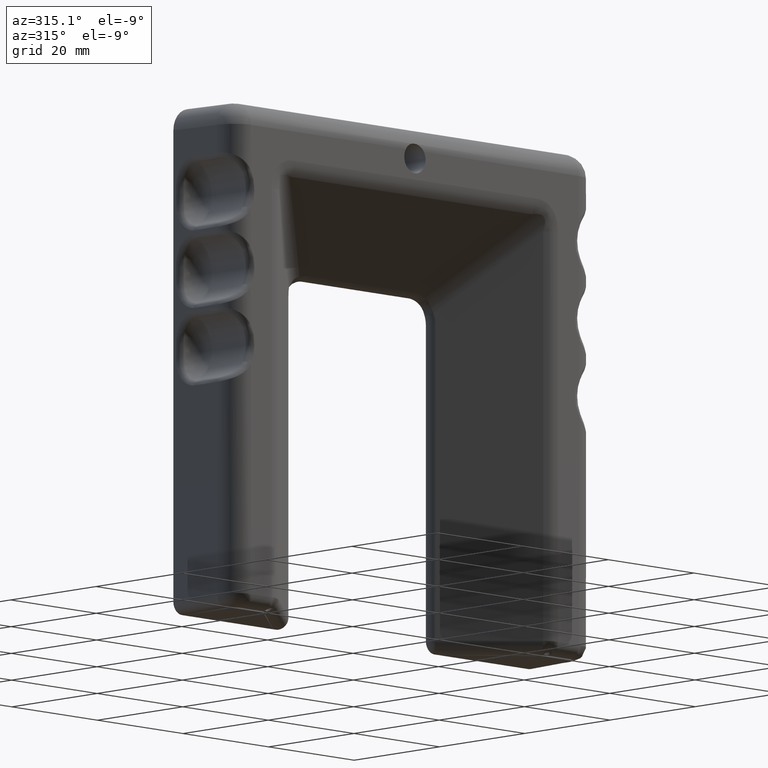
[diagram: clean part render]
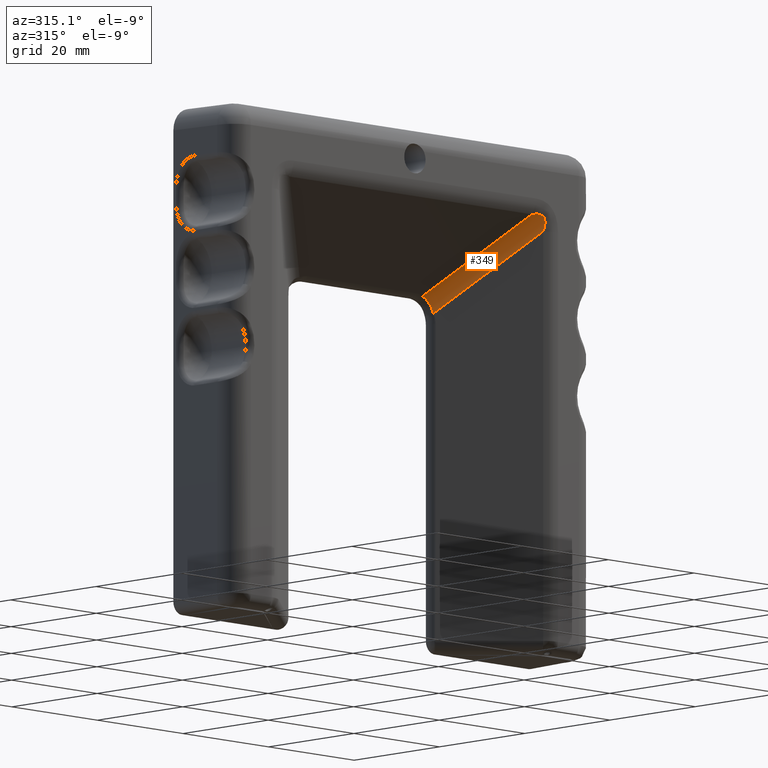
[diagram: same view with one face highlighted and labeled with its STEP entity id]
A machine part, auxiliary view. The second image highlights one B-rep face of the part: STEP entity #349.
In plain terms, the highlighted cylindrical surface (edge-blend (fillet) strip) has radius 4 mm, axis along (-0.6082, 0.5101, -0.6082).
Its self-contained STEP definition (entity closure, byte-faithful):
#349=ADVANCED_FACE('',(#1347),#1346,.F.);
#1346=CYLINDRICAL_SURFACE('',#6744,4.00000000000E+000);
#1347=FACE_OUTER_BOUND('',#6745,.T.);
#6741=CARTESIAN_POINT('',(1.42623546578E+001,-4.84389186112E+000,-2.23764534224E+000));
#6742=DIRECTION('',(-6.08193984694E-001,5.10098180711E-001,-6.08193984694E-001));
#6743=DIRECTION('',(-6.42612261976E-001,-7.66191543126E-001,4.03765547962E-015));
#6744=AXIS2_PLACEMENT_3D('',#6741,#6742,#6743);
#6745=EDGE_LOOP('',(#8347,#8348,#8349,#8350,#8351,#8352));
#8347=ORIENTED_EDGE('',*,*,#9245,.T.);
#8348=ORIENTED_EDGE('',*,*,#9080,.F.);
#8349=ORIENTED_EDGE('',*,*,#9079,.T.);
#8350=ORIENTED_EDGE('',*,*,#9246,.T.);
#8351=ORIENTED_EDGE('',*,*,#9247,.F.);
#8352=ORIENTED_EDGE('',*,*,#9248,.F.);
#9079=EDGE_CURVE('',#10341,#10334,#10342,.T.);
#9080=EDGE_CURVE('',#10341,#10307,#10348,.T.);
#9245=EDGE_CURVE('',#11446,#10307,#11447,.T.);
#9246=EDGE_CURVE('',#10334,#11453,#11454,.T.);
#9247=EDGE_CURVE('',#11460,#11453,#11461,.T.);
#9248=EDGE_CURVE('',#11446,#11460,#11467,.T.);
#10307=VERTEX_POINT('',#13576);
#10334=VERTEX_POINT('',#13593);
#10341=VERTEX_POINT('',#13598);
#10342=(BOUNDED_CURVE() B_SPLINE_CURVE(2,(#13599,#13600,#13601),.UNSPECIFIED.,.F.,.F.) B_SPLINE_CURVE_WITH_KNOTS((3,3),(0.00000000000E+000,1.00000000000E+000),.UNSPECIFIED.) CURVE() GEOMETRIC_REPRESENTATION_ITEM() RATIONAL_B_SPLINE_CURVE((1.00000000000E+000,9.72316835281E-001,1.00000000000E+000)) REPRESENTATION_ITEM('') );
#10348=(BOUNDED_CURVE() B_SPLINE_CURVE(2,(#13602,#13603,#13604),.UNSPECIFIED.,.F.,.F.) B_SPLINE_CURVE_WITH_KNOTS((3,3),(0.00000000000E+000,1.00000000000E+000),.UNSPECIFIED.) CURVE() GEOMETRIC_REPRESENTATION_ITEM() RATIONAL_B_SPLINE_CURVE((1.00000000000E+000,9.72316835281E-001,1.00000000000E+000)) REPRESENTATION_ITEM('') );
#11446=VERTEX_POINT('',#14581);
#11447=LINE('',#14582,#14583);
#11453=VERTEX_POINT('',#14585);
#11454=LINE('',#14586,#14587);
#11460=VERTEX_POINT('',#14589);
#11461=(BOUNDED_CURVE() B_SPLINE_CURVE(2,(#14590,#14591,#14592),.UNSPECIFIED.,.F.,.F.) B_SPLINE_CURVE_WITH_KNOTS((3,3),(0.00000000000E+000,1.00000000000E+000),.UNSPECIFIED.) CURVE() GEOMETRIC_REPRESENTATION_ITEM() RATIONAL_B_SPLINE_CURVE((1.00000000000E+000,9.72316835281E-001,1.00000000000E+000)) REPRESENTATION_ITEM('') );
#11467=(BOUNDED_CURVE() B_SPLINE_CURVE(2,(#14593,#14594,#14595),.UNSPECIFIED.,.F.,.F.) B_SPLINE_CURVE_WITH_KNOTS((3,3),(0.00000000000E+000,1.00000000000E+000),.UNSPECIFIED.) CURVE() GEOMETRIC_REPRESENTATION_ITEM() RATIONAL_B_SPLINE_CURVE((1.00000000000E+000,9.72316835281E-001,1.00000000000E+000)) REPRESENTATION_ITEM('') );
#13576=CARTESIAN_POINT('',(1.43515077773E+001,-1.85389927268E+000,4.21956825107E-001));
#13593=CARTESIAN_POINT('',(1.69219568252E+001,-1.85389927267E+000,-2.14849222279E+000));
#13598=CARTESIAN_POINT('',(1.60212529219E+001,-1.66856233010E+000,-4.78747078177E-001));
#13599=CARTESIAN_POINT('',(1.60212529219E+001,-1.66856233010E+000,-4.78747078177E-001));
#13600=CARTESIAN_POINT('',(1.67009781629E+001,-1.66856233010E+000,-1.15847231916E+000));
#13601=CARTESIAN_POINT('',(1.69219568252E+001,-1.85389927267E+000,-2.14849222279E+000));
#13602=CARTESIAN_POINT('',(1.60212529219E+001,-1.66856233010E+000,-4.78747078177E-001));
#13603=CARTESIAN_POINT('',(1.53415276809E+001,-1.66856233010E+000,2.00978162809E-001));
#13604=CARTESIAN_POINT('',(1.43515077773E+001,-1.85389927268E+000,4.21956825107E-001));
#14581=CARTESIAN_POINT('',(2.83144644655E+001,-1.35647661725E+001,1.43849135134E+001));
#14582=CARTESIAN_POINT('',(2.83144644655E+001,-1.35647661725E+001,1.43849135134E+001));
#14583=VECTOR('',#14584,2.29580644329E+001);
#14584=DIRECTION('',(-6.08193984694E-001,5.10098180711E-001,-6.08193984694E-001));
#14585=CARTESIAN_POINT('',(3.08849135134E+001,-1.35647661725E+001,1.18144644655E+001));
#14586=CARTESIAN_POINT('',(1.69219568252E+001,-1.85389927268E+000,-2.14849222279E+000));
#14587=VECTOR('',#14588,2.29580644328E+001);
#14588=DIRECTION('',(6.08193984694E-001,-5.10098180711E-001,6.08193984694E-001));
#14589=CARTESIAN_POINT('',(3.06531365488E+001,-1.39404647268E+001,1.41531365487E+001));
#14590=CARTESIAN_POINT('',(3.06531365488E+001,-1.39404647268E+001,1.41531365487E+001));
#14591=CARTESIAN_POINT('',(3.13328617897E+001,-1.39404647268E+001,1.34734113077E+001));
#14592=CARTESIAN_POINT('',(3.08849135134E+001,-1.35647661725E+001,1.18144644655E+001));
#14593=CARTESIAN_POINT('',(2.83144644655E+001,-1.35647661725E+001,1.43849135134E+001));
#14594=CARTESIAN_POINT('',(2.99734113078E+001,-1.39404647268E+001,1.48328617897E+001));
#14595=CARTESIAN_POINT('',(3.06531365488E+001,-1.39404647268E+001,1.41531365487E+001));